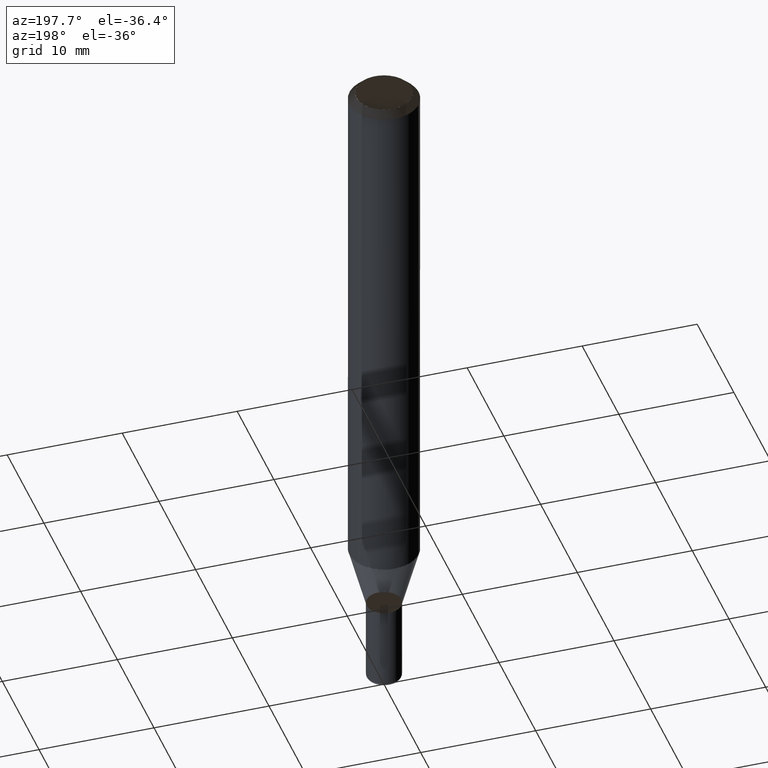
[diagram: clean part render]
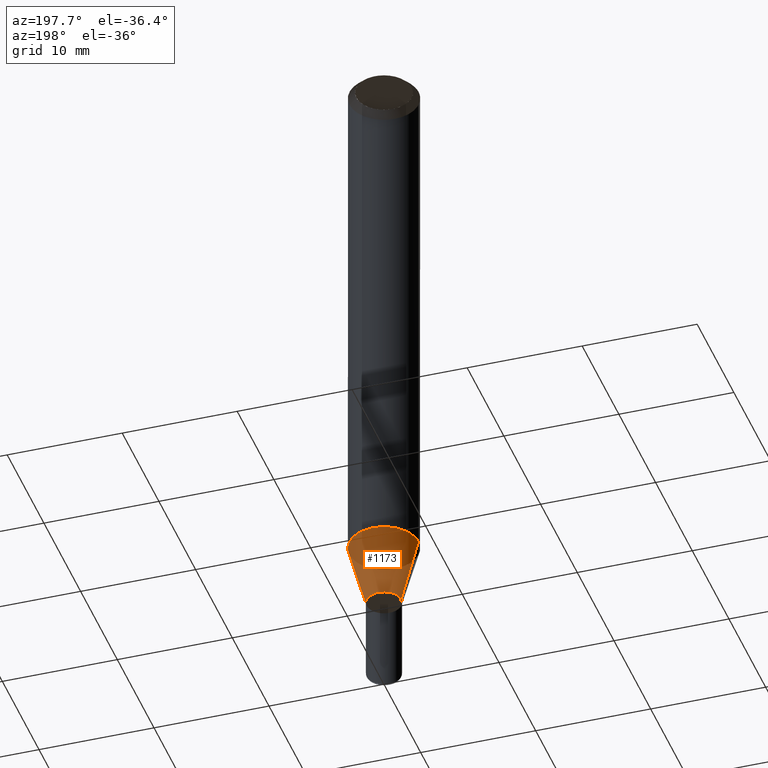
[diagram: same view with one face highlighted and labeled with its STEP entity id]
A machine part, auxiliary view. The second image highlights one B-rep face of the part: STEP entity #1173.
In plain terms, the highlighted face is a freeform B-spline surface patch.
Its self-contained STEP definition (entity closure, byte-faithful):
#932=CARTESIAN_POINT('',(1.5,0.0,-5.598076211353));
#933=CARTESIAN_POINT('',(1.5,1.5,-5.598076211353));
#934=CARTESIAN_POINT('',(0.0,1.5,-5.598076211353));
#935=CARTESIAN_POINT('',(-1.5,1.5,-5.598076211353));
#936=CARTESIAN_POINT('',(-1.5,0.0,-5.598076211353));
#956=CARTESIAN_POINT('',(3.0,0.0,-0.0));
#957=CARTESIAN_POINT('',(3.0,3.0,-0.0));
#958=CARTESIAN_POINT('',(0.0,3.0,-0.0));
#959=CARTESIAN_POINT('',(-3.0,3.0,-0.0));
#960=CARTESIAN_POINT('',(-3.0,0.0,-0.0));
#1154=(
BOUNDED_SURFACE()
B_SPLINE_SURFACE(1,2,(
(#932,#933,#934,#935,#936),
(#956,#957,#958,#959,#960)
), .UNSPECIFIED.,.F.,.F.,.F.)
B_SPLINE_SURFACE_WITH_KNOTS((2,2),(3,2,3),(
0.0,1.0),(
0.0,0.5,1.0), .UNSPECIFIED.)
GEOMETRIC_REPRESENTATION_ITEM()
RATIONAL_B_SPLINE_SURFACE(((1.0,0.707106781187,1.0,0.707106781187,1.0),
(1.0,0.707106781187,1.0,0.707106781187,1.0)
))
REPRESENTATION_ITEM('')
SURFACE()
);
#1155=(
BOUNDED_CURVE()
B_SPLINE_CURVE(2,(#956,#957,#958,#959,#960),.UNSPECIFIED.,.F.,.F.)
B_SPLINE_CURVE_WITH_KNOTS((3,2,3),
(0.0,0.5,1.0),.UNSPECIFIED.)
CURVE()
GEOMETRIC_REPRESENTATION_ITEM()
RATIONAL_B_SPLINE_CURVE((1.0,0.707106781187,1.0,0.707106781187,1.0))
REPRESENTATION_ITEM('')
);
#1156=(
BOUNDED_CURVE()
B_SPLINE_CURVE(1,(#960,#936),.UNSPECIFIED.,.F.,.F.)
B_SPLINE_CURVE_WITH_KNOTS((2,2),
(0.0,1.0),.UNSPECIFIED.)
CURVE()
GEOMETRIC_REPRESENTATION_ITEM()
RATIONAL_B_SPLINE_CURVE((1.0,1.0))
REPRESENTATION_ITEM('')
);
#1157=(
BOUNDED_CURVE()
B_SPLINE_CURVE(2,(#936,#935,#934,#933,#932),.UNSPECIFIED.,.F.,.F.)
B_SPLINE_CURVE_WITH_KNOTS((3,2,3),
(0.0,0.5,1.0),.UNSPECIFIED.)
CURVE()
GEOMETRIC_REPRESENTATION_ITEM()
RATIONAL_B_SPLINE_CURVE((1.0,0.707106781187,1.0,0.707106781187,1.0))
REPRESENTATION_ITEM('')
);
#1158=(
BOUNDED_CURVE()
B_SPLINE_CURVE(1,(#932,#956),.UNSPECIFIED.,.F.,.F.)
B_SPLINE_CURVE_WITH_KNOTS((2,2),
(0.0,1.0),.UNSPECIFIED.)
CURVE()
GEOMETRIC_REPRESENTATION_ITEM()
RATIONAL_B_SPLINE_CURVE((1.0,1.0))
REPRESENTATION_ITEM('')
);
#1159=VERTEX_POINT('',#932);
#1160=VERTEX_POINT('',#936);
#1161=VERTEX_POINT('',#956);
#1162=VERTEX_POINT('',#960);
#1163=EDGE_CURVE('',#1161,#1162,#1155,.T.);
#1164=EDGE_CURVE('',#1162,#1160,#1156,.T.);
#1165=EDGE_CURVE('',#1160,#1159,#1157,.T.);
#1166=EDGE_CURVE('',#1159,#1161,#1158,.T.);
#1167=ORIENTED_EDGE('',*,*,#1163,.T.);
#1168=ORIENTED_EDGE('',*,*,#1164,.T.);
#1169=ORIENTED_EDGE('',*,*,#1165,.T.);
#1170=ORIENTED_EDGE('',*,*,#1166,.T.);
#1171=EDGE_LOOP('',(#1167,#1168,#1169,#1170));
#1172=FACE_OUTER_BOUND('',#1171,.T.);
#1173=ADVANCED_FACE('',(#1172),#1154,.T.);